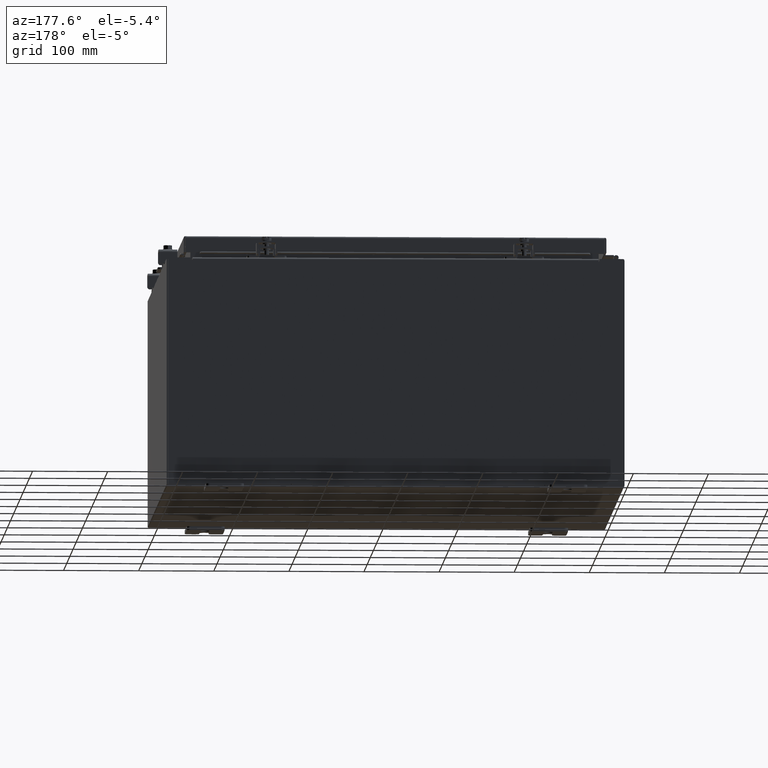
[diagram: clean part render]
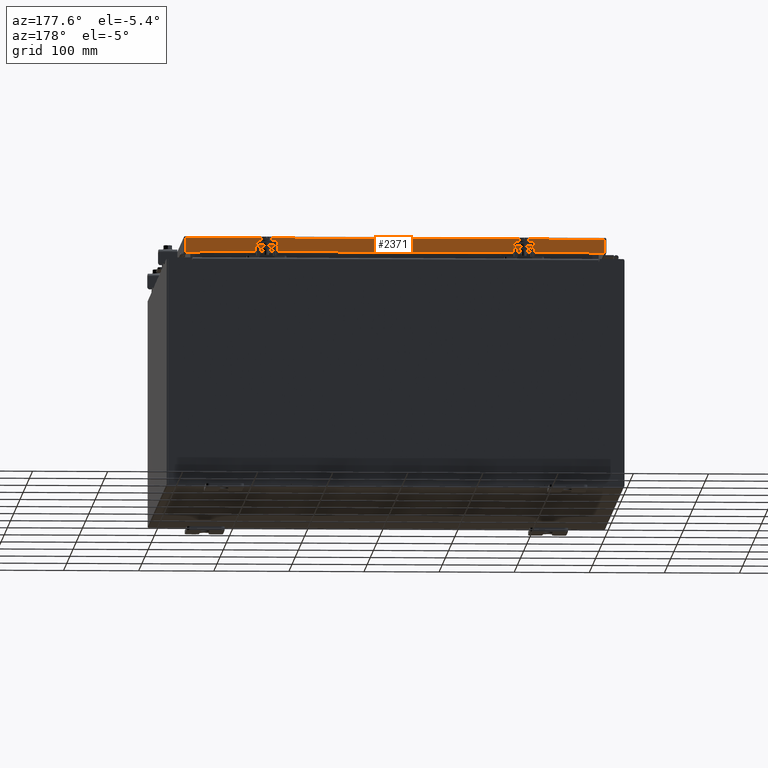
[diagram: same view with one face highlighted and labeled with its STEP entity id]
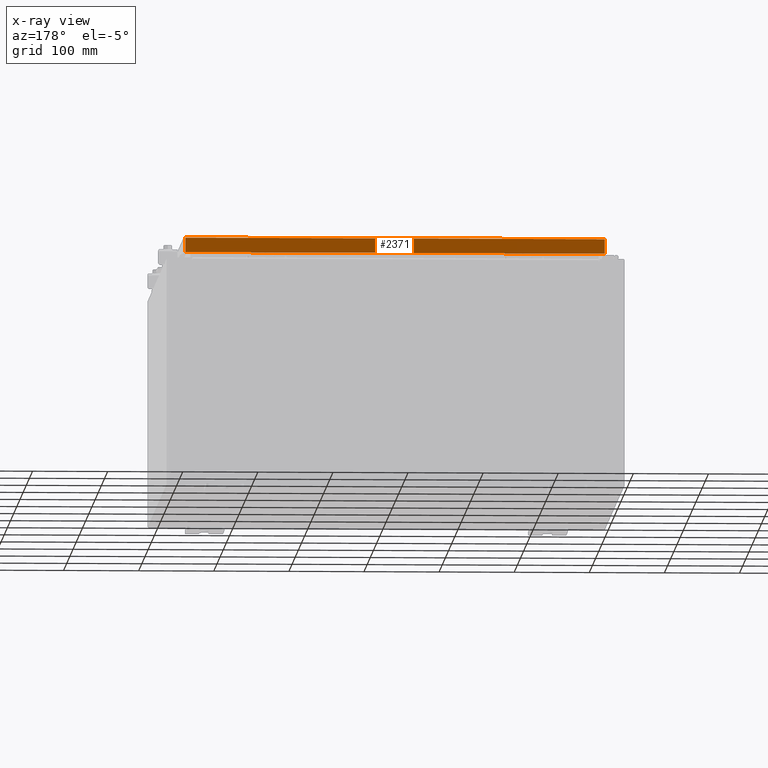
[diagram: x-ray of the same camera — body ghosted, the highlighted face saturated]
A machine part, auxiliary view. The second image highlights one B-rep face of the part: STEP entity #2371.
The next image is the same camera in x-ray: the body ghosted, the highlighted face saturated — about 0% of this face is hidden behind the body in this view.
In plain terms, the highlighted planar face has unit normal (0, -1, -0).
Its self-contained STEP definition (entity closure, byte-faithful):
#359 = EDGE_CURVE ( 'NONE', #12080, #31473, #1298, .T. ) ;
#403 = EDGE_CURVE ( 'NONE', #21537, #23185, #500, .T. ) ;
#500 = LINE ( 'NONE', #13704, #19717 ) ;
#903 = LINE ( 'NONE', #6661, #19331 ) ;
#986 = CARTESIAN_POINT ( 'NONE',  ( 10.98915786437626500, 11.09399999999999800, 3.153347883512803100E-014 ) ) ;
#1298 = LINE ( 'NONE', #12407, #27911 ) ;
#1558 = DIRECTION ( 'NONE',  ( 0.0000000000000000000, 2.818880942772350300E-015, -1.000000000000000000 ) ) ;
#2085 = VECTOR ( 'NONE', #17261, 39.37007874015748100 ) ;
#2204 = VECTOR ( 'NONE', #14027, 39.37007874015748100 ) ;
#2324 = CARTESIAN_POINT ( 'NONE',  ( -10.23915786437626500, 11.09399999999999200, -0.8500000000000044200 ) ) ;
#2371 = ADVANCED_FACE ( 'NONE', ( #15292 ), #15071, .F. ) ;
#3055 = VERTEX_POINT ( 'NONE', #14957 ) ;
#3841 = EDGE_LOOP ( 'NONE', ( #3867, #21902, #31784, #29950, #24360, #12262 ) ) ;
#3867 = ORIENTED_EDGE ( 'NONE', *, *, #359, .F. ) ;
#4574 = LINE ( 'NONE', #9000, #2204 ) ;
#6661 = CARTESIAN_POINT ( 'NONE',  ( -10.98915786437626900, 11.09399999999999800, -0.07469999999999978000 ) ) ;
#7044 = CARTESIAN_POINT ( 'NONE',  ( 10.23915786437625100, 11.09399999999999200, -0.8500000000000044200 ) ) ;
#8053 = CARTESIAN_POINT ( 'NONE',  ( 10.98915786437626500, 11.09399999999999900, -0.8499999999999996400 ) ) ;
#8314 = DIRECTION ( 'NONE',  ( 1.000000000000000000, -4.379057701015054300E-047, 1.233005954894504400E-016 ) ) ;
#8648 = EDGE_CURVE ( 'NONE', #12080, #23185, #12986, .T. ) ;
#9000 = CARTESIAN_POINT ( 'NONE',  ( -11.07800000000000300, 11.09399999999999900, -0.8500000000000024200 ) ) ;
#9711 = CARTESIAN_POINT ( 'NONE',  ( -10.23915786437626700, 11.09399999999999200, -0.8500000000000044200 ) ) ;
#12080 = VERTEX_POINT ( 'NONE', #18600 ) ;
#12262 = ORIENTED_EDGE ( 'NONE', *, *, #30493, .F. ) ;
#12366 = DIRECTION ( 'NONE',  ( -1.000000000000000000, -3.475696988576942200E-031, -9.473942235605600700E-046 ) ) ;
#12407 = CARTESIAN_POINT ( 'NONE',  ( -11.07800000000000300, 11.09399999999999800, -0.08770000000000007000 ) ) ;
#12986 = LINE ( 'NONE', #986, #18773 ) ;
#13704 = CARTESIAN_POINT ( 'NONE',  ( -11.07800000000000300, 11.09399999999999900, -0.8500000000000024200 ) ) ;
#14027 = DIRECTION ( 'NONE',  ( 1.000000000000000000, -4.379057701015054300E-047, 1.233005954894504400E-016 ) ) ;
#14957 = CARTESIAN_POINT ( 'NONE',  ( -10.98915786437626900, 11.09399999999999900, -0.8500000000000024200 ) ) ;
#15071 = PLANE ( 'NONE',  #25606 ) ;
#15292 = FACE_OUTER_BOUND ( 'NONE', #3841, .T. ) ;
#15381 = LINE ( 'NONE', #2324, #2085 ) ;
#16523 = EDGE_CURVE ( 'NONE', #32151, #21537, #15381, .T. ) ;
#17261 = DIRECTION ( 'NONE',  ( 1.000000000000000000, -0.0000000000000000000, -0.0000000000000000000 ) ) ;
#18304 = CARTESIAN_POINT ( 'NONE',  ( -3.855938239127258200E-030, 11.09399999999999800, 3.153347883512803100E-014 ) ) ;
#18600 = CARTESIAN_POINT ( 'NONE',  ( 10.98915786437626500, 11.09399999999999800, -0.08770000000000007000 ) ) ;
#18773 = VECTOR ( 'NONE', #1558, 39.37007874015748100 ) ;
#19331 = VECTOR ( 'NONE', #31513, 39.37007874015748100 ) ;
#19717 = VECTOR ( 'NONE', #8314, 39.37007874015748100 ) ;
#21537 = VERTEX_POINT ( 'NONE', #7044 ) ;
#21766 = CARTESIAN_POINT ( 'NONE',  ( -10.98915786437626900, 11.09399999999999800, -0.08770000000000007000 ) ) ;
#21902 = ORIENTED_EDGE ( 'NONE', *, *, #8648, .T. ) ;
#23185 = VERTEX_POINT ( 'NONE', #8053 ) ;
#24360 = ORIENTED_EDGE ( 'NONE', *, *, #29160, .F. ) ;
#25606 = AXIS2_PLACEMENT_3D ( 'NONE', #18304, #25795, #25820 ) ;
#25795 = DIRECTION ( 'NONE',  ( 3.475696988576941300E-031, -1.000000000000000000, -2.818880942772350300E-015 ) ) ;
#25820 = DIRECTION ( 'NONE',  ( 0.0000000000000000000, 2.818880942772350300E-015, -1.000000000000000000 ) ) ;
#27911 = VECTOR ( 'NONE', #12366, 39.37007874015748100 ) ;
#29160 = EDGE_CURVE ( 'NONE', #3055, #32151, #4574, .T. ) ;
#29950 = ORIENTED_EDGE ( 'NONE', *, *, #16523, .F. ) ;
#30493 = EDGE_CURVE ( 'NONE', #31473, #3055, #903, .T. ) ;
#31473 = VERTEX_POINT ( 'NONE', #21766 ) ;
#31513 = DIRECTION ( 'NONE',  ( -0.0000000000000000000, 2.818880942772350300E-015, -1.000000000000000000 ) ) ;
#31784 = ORIENTED_EDGE ( 'NONE', *, *, #403, .F. ) ;
#32151 = VERTEX_POINT ( 'NONE', #9711 ) ;